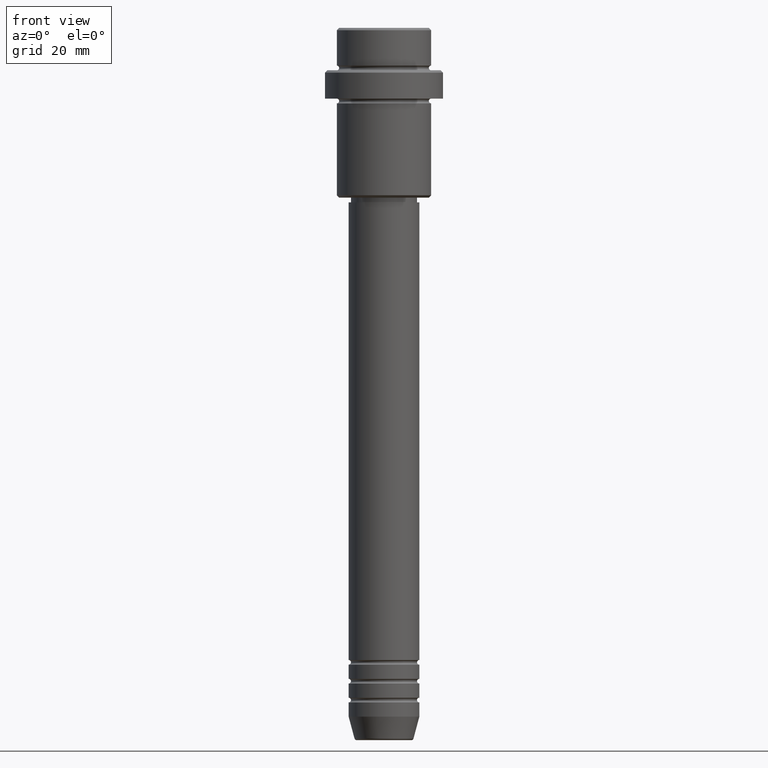
[diagram: clean part render]
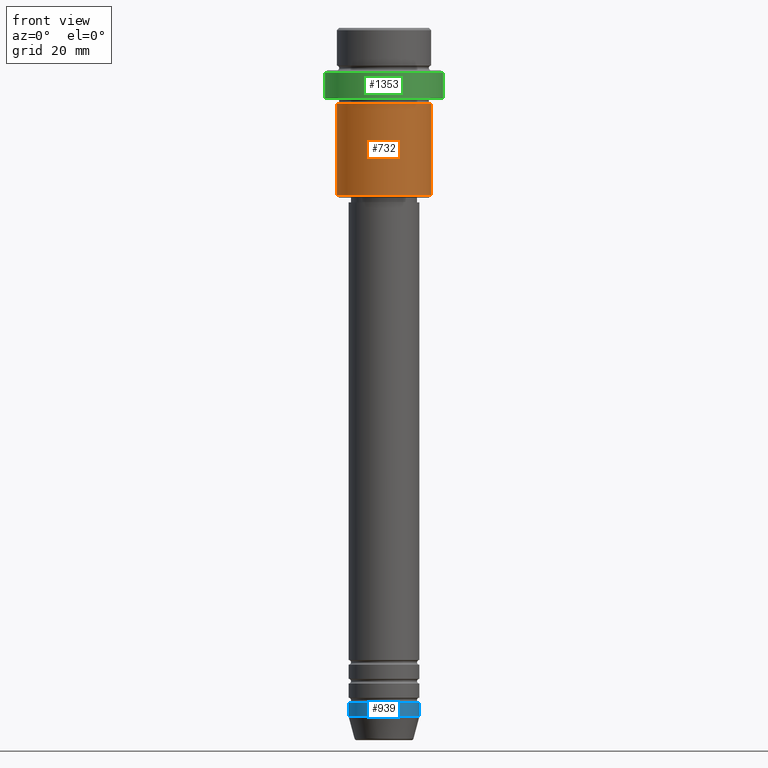
[diagram: same view with three faces highlighted in distinct colors, each labeled with its STEP entity id]
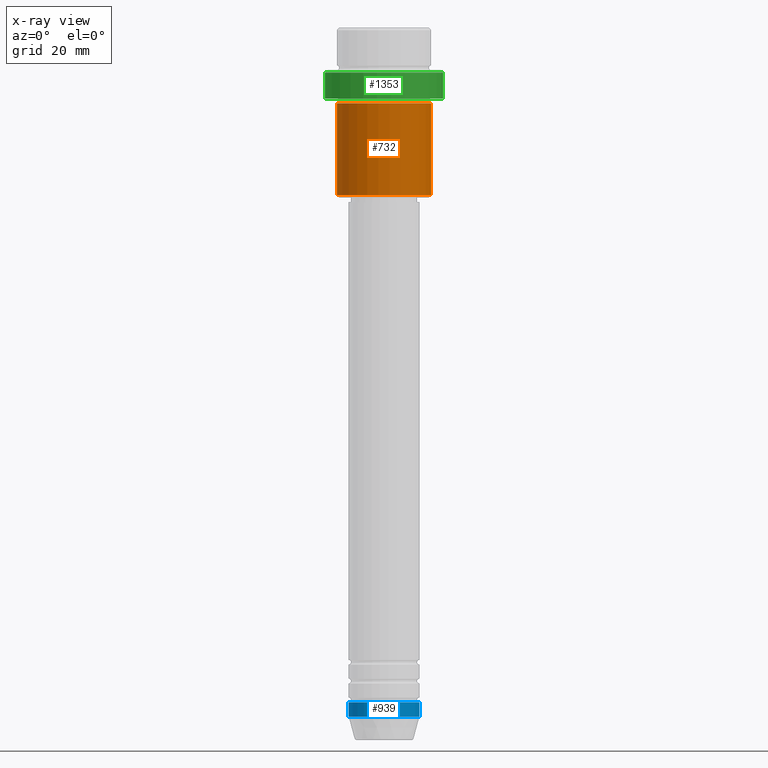
[diagram: x-ray of the same camera — body ghosted, the three highlighted faces saturated]
A machine part, front view with three faces highlighted in distinct colors.
The next image is the same camera in x-ray (body ghosted, the three faces saturated) — at least one of them is partly hidden behind the body in this view.
Their STEP definitions:

[orange] entity #732 — the highlighted cylindrical surface (partial cylindrical patch) has radius 10 mm, axis along (-0, -0, 1).
#10 = CARTESIAN_POINT ( 'NONE',  ( 0.000000000000000000, 0.000000000000000000, -16.00000000000000000 ) ) ;
#15 = CARTESIAN_POINT ( 'NONE',  ( 0.000000000000000000, 0.000000000000000000, 0.000000000000000000 ) ) ;
#37 = CARTESIAN_POINT ( 'NONE',  ( 10.00000000000000000, 0.000000000000000000, -35.49999999999995737 ) ) ;
#41 = DIRECTION ( 'NONE',  ( -0.000000000000000000, -0.000000000000000000, 1.000000000000000000 ) ) ;
#135 = CARTESIAN_POINT ( 'NONE',  ( 0.000000000000000000, 0.000000000000000000, -35.49999999999995737 ) ) ;
#190 = EDGE_LOOP ( 'NONE', ( #426, #871, #999, #242 ) ) ;
#227 = VERTEX_POINT ( 'NONE', #1092 ) ;
#242 = ORIENTED_EDGE ( 'NONE', *, *, #330, .F. ) ;
#330 = EDGE_CURVE ( 'NONE', #1072, #227, #1019, .T. ) ;
#382 = CARTESIAN_POINT ( 'NONE',  ( -10.00000000000000000, 1.224646799147353256E-15, -35.49999999999995737 ) ) ;
#426 = ORIENTED_EDGE ( 'NONE', *, *, #743, .F. ) ;
#457 = VERTEX_POINT ( 'NONE', #37 ) ;
#477 = DIRECTION ( 'NONE',  ( -0.000000000000000000, -0.000000000000000000, 1.000000000000000000 ) ) ;
#550 = EDGE_CURVE ( 'NONE', #457, #227, #982, .T. ) ;
#590 = CARTESIAN_POINT ( 'NONE',  ( -10.00000000000000000, 1.224646799147353256E-15, -16.00000000000000000 ) ) ;
#624 = AXIS2_PLACEMENT_3D ( 'NONE', #10, #477, #796 ) ;
#627 = VECTOR ( 'NONE', #664, 1000.000000000000000 ) ;
#664 = DIRECTION ( 'NONE',  ( -0.000000000000000000, -0.000000000000000000, 1.000000000000000000 ) ) ;
#732 = ADVANCED_FACE ( 'NONE', ( #1329 ), #802, .T. ) ;
#734 = VECTOR ( 'NONE', #816, 1000.000000000000000 ) ;
#743 = EDGE_CURVE ( 'NONE', #1344, #1072, #1233, .T. ) ;
#794 = CARTESIAN_POINT ( 'NONE',  ( -10.00000000000000000, 1.224646799147353256E-15, 0.000000000000000000 ) ) ;
#796 = DIRECTION ( 'NONE',  ( 1.000000000000000000, 0.000000000000000000, 0.000000000000000000 ) ) ;
#802 = CYLINDRICAL_SURFACE ( 'NONE', #1062, 10.00000000000000000 ) ;
#816 = DIRECTION ( 'NONE',  ( -0.000000000000000000, -0.000000000000000000, 1.000000000000000000 ) ) ;
#871 = ORIENTED_EDGE ( 'NONE', *, *, #1292, .T. ) ;
#982 = LINE ( 'NONE', #1076, #627 ) ;
#999 = ORIENTED_EDGE ( 'NONE', *, *, #550, .T. ) ;
#1019 = CIRCLE ( 'NONE', #624, 10.00000000000000000 ) ;
#1062 = AXIS2_PLACEMENT_3D ( 'NONE', #15, #1219, #1114 ) ;
#1065 = AXIS2_PLACEMENT_3D ( 'NONE', #135, #41, #1360 ) ;
#1072 = VERTEX_POINT ( 'NONE', #590 ) ;
#1076 = CARTESIAN_POINT ( 'NONE',  ( 10.00000000000000000, 0.000000000000000000, 0.000000000000000000 ) ) ;
#1092 = CARTESIAN_POINT ( 'NONE',  ( 10.00000000000000000, 0.000000000000000000, -16.00000000000000000 ) ) ;
#1114 = DIRECTION ( 'NONE',  ( 1.000000000000000000, 0.000000000000000000, 0.000000000000000000 ) ) ;
#1219 = DIRECTION ( 'NONE',  ( -0.000000000000000000, -0.000000000000000000, 1.000000000000000000 ) ) ;
#1220 = CIRCLE ( 'NONE', #1065, 10.00000000000000000 ) ;
#1233 = LINE ( 'NONE', #794, #734 ) ;
#1292 = EDGE_CURVE ( 'NONE', #1344, #457, #1220, .T. ) ;
#1329 = FACE_OUTER_BOUND ( 'NONE', #190, .T. ) ;
#1344 = VERTEX_POINT ( 'NONE', #382 ) ;
#1360 = DIRECTION ( 'NONE',  ( -1.000000000000000000, 0.000000000000000000, 0.000000000000000000 ) ) ;

[blue] entity #939 — the highlighted cylindrical surface (edge-blend (fillet) strip) has radius 7.5 mm, axis along (-0, -0, 1).
#71 = EDGE_CURVE ( 'NONE', #688, #593, #1047, .T. ) ;
#72 = CARTESIAN_POINT ( 'NONE',  ( 7.500000000000000000, 0.000000000000000000, -143.0000000000000000 ) ) ;
#136 = AXIS2_PLACEMENT_3D ( 'NONE', #925, #395, #150 ) ;
#150 = DIRECTION ( 'NONE',  ( 1.000000000000000000, 0.000000000000000000, 0.000000000000000000 ) ) ;
#167 = CARTESIAN_POINT ( 'NONE',  ( 7.500000000000000000, 0.000000000000000000, 0.000000000000000000 ) ) ;
#297 = DIRECTION ( 'NONE',  ( -0.000000000000000000, -0.000000000000000000, 1.000000000000000000 ) ) ;
#314 = VECTOR ( 'NONE', #1285, 1000.000000000000000 ) ;
#395 = DIRECTION ( 'NONE',  ( -0.000000000000000000, -0.000000000000000000, 1.000000000000000000 ) ) ;
#408 = ORIENTED_EDGE ( 'NONE', *, *, #71, .F. ) ;
#499 = CARTESIAN_POINT ( 'NONE',  ( -7.500000000000000000, 9.184850993605147944E-16, -143.0000000000000000 ) ) ;
#501 = EDGE_LOOP ( 'NONE', ( #773, #1112, #1208, #408 ) ) ;
#505 = FACE_OUTER_BOUND ( 'NONE', #501, .T. ) ;
#593 = VERTEX_POINT ( 'NONE', #72 ) ;
#629 = DIRECTION ( 'NONE',  ( -0.000000000000000000, -0.000000000000000000, 1.000000000000000000 ) ) ;
#642 = EDGE_CURVE ( 'NONE', #655, #688, #658, .T. ) ;
#655 = VERTEX_POINT ( 'NONE', #1071 ) ;
#658 = LINE ( 'NONE', #1389, #314 ) ;
#688 = VERTEX_POINT ( 'NONE', #499 ) ;
#757 = AXIS2_PLACEMENT_3D ( 'NONE', #1245, #629, #1359 ) ;
#773 = ORIENTED_EDGE ( 'NONE', *, *, #642, .F. ) ;
#831 = CARTESIAN_POINT ( 'NONE',  ( 0.000000000000000000, 0.000000000000000000, -146.0000000000000000 ) ) ;
#833 = CYLINDRICAL_SURFACE ( 'NONE', #136, 7.500000000000000000 ) ;
#925 = CARTESIAN_POINT ( 'NONE',  ( 0.000000000000000000, 0.000000000000000000, 0.000000000000000000 ) ) ;
#939 = ADVANCED_FACE ( 'NONE', ( #505 ), #833, .T. ) ;
#1041 = LINE ( 'NONE', #167, #1153 ) ;
#1047 = CIRCLE ( 'NONE', #757, 7.500000000000000000 ) ;
#1054 = DIRECTION ( 'NONE',  ( -0.000000000000000000, -0.000000000000000000, 1.000000000000000000 ) ) ;
#1071 = CARTESIAN_POINT ( 'NONE',  ( -7.500000000000000000, 9.184850993605147944E-16, -146.0000000000000000 ) ) ;
#1112 = ORIENTED_EDGE ( 'NONE', *, *, #1298, .T. ) ;
#1126 = CARTESIAN_POINT ( 'NONE',  ( 7.500000000000000000, 0.000000000000000000, -146.0000000000000000 ) ) ;
#1153 = VECTOR ( 'NONE', #297, 1000.000000000000000 ) ;
#1174 = AXIS2_PLACEMENT_3D ( 'NONE', #831, #1054, #1339 ) ;
#1208 = ORIENTED_EDGE ( 'NONE', *, *, #1249, .T. ) ;
#1224 = VERTEX_POINT ( 'NONE', #1126 ) ;
#1245 = CARTESIAN_POINT ( 'NONE',  ( 0.000000000000000000, 0.000000000000000000, -143.0000000000000000 ) ) ;
#1249 = EDGE_CURVE ( 'NONE', #1224, #593, #1041, .T. ) ;
#1285 = DIRECTION ( 'NONE',  ( -0.000000000000000000, -0.000000000000000000, 1.000000000000000000 ) ) ;
#1298 = EDGE_CURVE ( 'NONE', #655, #1224, #1327, .T. ) ;
#1327 = CIRCLE ( 'NONE', #1174, 7.500000000000000000 ) ;
#1339 = DIRECTION ( 'NONE',  ( 1.000000000000000000, 0.000000000000000000, 0.000000000000000000 ) ) ;
#1359 = DIRECTION ( 'NONE',  ( 1.000000000000000000, 0.000000000000000000, 0.000000000000000000 ) ) ;
#1389 = CARTESIAN_POINT ( 'NONE',  ( -7.500000000000000000, 9.184850993605147944E-16, 0.000000000000000000 ) ) ;

[green] entity #1353 — the highlighted cylindrical surface (partial cylindrical patch) has radius 12.5 mm, axis along (-0, -0, 1).
#51 = DIRECTION ( 'NONE',  ( 1.000000000000000000, 0.000000000000000000, 0.000000000000000000 ) ) ;
#80 = DIRECTION ( 'NONE',  ( -0.000000000000000000, -0.000000000000000000, 1.000000000000000000 ) ) ;
#100 = CARTESIAN_POINT ( 'NONE',  ( -12.50000000000000000, 1.530808498934191521E-15, 0.000000000000000000 ) ) ;
#110 = CIRCLE ( 'NONE', #929, 12.50000000000000000 ) ;
#203 = VERTEX_POINT ( 'NONE', #771 ) ;
#233 = ORIENTED_EDGE ( 'NONE', *, *, #574, .F. ) ;
#243 = AXIS2_PLACEMENT_3D ( 'NONE', #1236, #391, #51 ) ;
#252 = DIRECTION ( 'NONE',  ( 1.000000000000000000, 0.000000000000000000, 0.000000000000000000 ) ) ;
#283 = DIRECTION ( 'NONE',  ( -0.000000000000000000, -0.000000000000000000, 1.000000000000000000 ) ) ;
#328 = LINE ( 'NONE', #1404, #667 ) ;
#344 = ORIENTED_EDGE ( 'NONE', *, *, #869, .T. ) ;
#374 = CARTESIAN_POINT ( 'NONE',  ( 0.000000000000000000, 0.000000000000000000, -9.499999999999992895 ) ) ;
#380 = EDGE_CURVE ( 'NONE', #980, #697, #1043, .T. ) ;
#391 = DIRECTION ( 'NONE',  ( -0.000000000000000000, -0.000000000000000000, 1.000000000000000000 ) ) ;
#463 = ORIENTED_EDGE ( 'NONE', *, *, #595, .T. ) ;
#472 = EDGE_LOOP ( 'NONE', ( #233, #344, #463, #673 ) ) ;
#516 = CARTESIAN_POINT ( 'NONE',  ( 12.50000000000000000, 0.000000000000000000, -15.00000000000000178 ) ) ;
#518 = CARTESIAN_POINT ( 'NONE',  ( 0.000000000000000000, 0.000000000000000000, -15.00000000000000178 ) ) ;
#561 = CARTESIAN_POINT ( 'NONE',  ( 12.50000000000000000, 0.000000000000000000, -9.499999999999992895 ) ) ;
#574 = EDGE_CURVE ( 'NONE', #203, #697, #1381, .T. ) ;
#595 = EDGE_CURVE ( 'NONE', #1307, #980, #328, .T. ) ;
#667 = VECTOR ( 'NONE', #1192, 1000.000000000000000 ) ;
#673 = ORIENTED_EDGE ( 'NONE', *, *, #380, .T. ) ;
#685 = CARTESIAN_POINT ( 'NONE',  ( -12.50000000000000000, 1.530808498934191521E-15, -9.499999999999992895 ) ) ;
#697 = VERTEX_POINT ( 'NONE', #685 ) ;
#771 = CARTESIAN_POINT ( 'NONE',  ( -12.50000000000000000, 1.530808498934191521E-15, -15.00000000000000178 ) ) ;
#820 = CYLINDRICAL_SURFACE ( 'NONE', #243, 12.50000000000000000 ) ;
#869 = EDGE_CURVE ( 'NONE', #203, #1307, #110, .T. ) ;
#929 = AXIS2_PLACEMENT_3D ( 'NONE', #518, #283, #935 ) ;
#935 = DIRECTION ( 'NONE',  ( 1.000000000000000000, 0.000000000000000000, 0.000000000000000000 ) ) ;
#951 = AXIS2_PLACEMENT_3D ( 'NONE', #374, #1227, #252 ) ;
#980 = VERTEX_POINT ( 'NONE', #561 ) ;
#1028 = FACE_OUTER_BOUND ( 'NONE', #472, .T. ) ;
#1043 = CIRCLE ( 'NONE', #951, 12.50000000000000000 ) ;
#1078 = VECTOR ( 'NONE', #80, 1000.000000000000000 ) ;
#1192 = DIRECTION ( 'NONE',  ( -0.000000000000000000, -0.000000000000000000, 1.000000000000000000 ) ) ;
#1227 = DIRECTION ( 'NONE',  ( 0.000000000000000000, 0.000000000000000000, -1.000000000000000000 ) ) ;
#1236 = CARTESIAN_POINT ( 'NONE',  ( 0.000000000000000000, 0.000000000000000000, 0.000000000000000000 ) ) ;
#1307 = VERTEX_POINT ( 'NONE', #516 ) ;
#1353 = ADVANCED_FACE ( 'NONE', ( #1028 ), #820, .T. ) ;
#1381 = LINE ( 'NONE', #100, #1078 ) ;
#1404 = CARTESIAN_POINT ( 'NONE',  ( 12.50000000000000000, 0.000000000000000000, 0.000000000000000000 ) ) ;